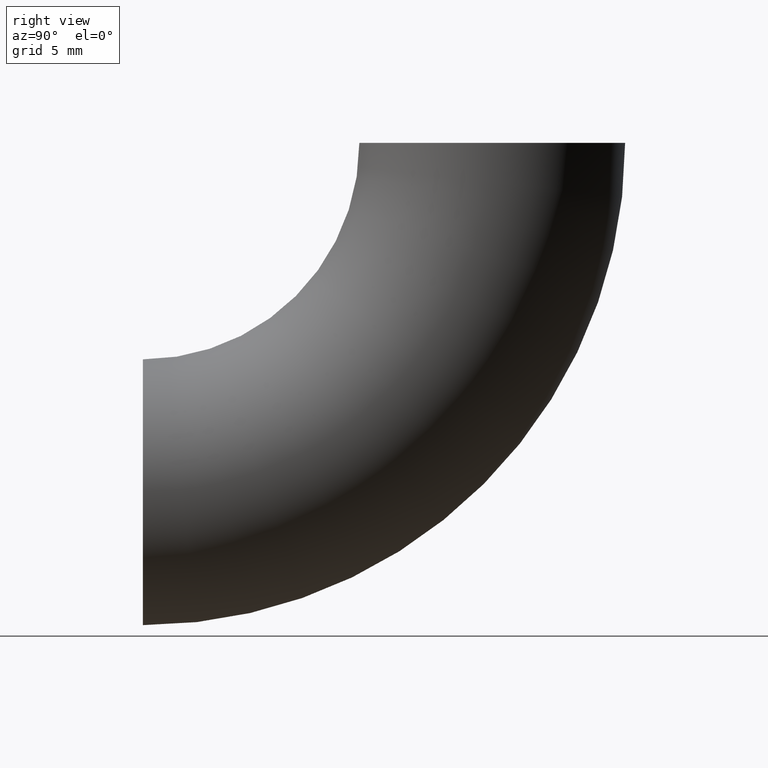
[diagram: clean part render]
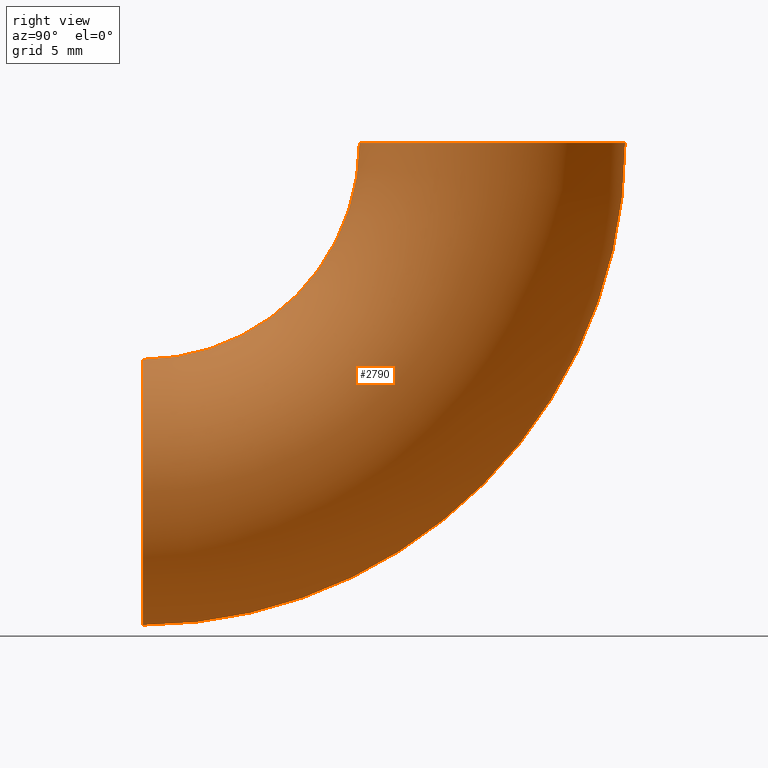
[diagram: same view with one face highlighted and labeled with its STEP entity id]
A machine part, right view. The second image highlights one B-rep face of the part: STEP entity #2790.
In plain terms, the highlighted toroidal blend (fillet) surface has major radius 28 mm and minor (blend) radius 10.65 mm.
Its self-contained STEP definition (entity closure, byte-faithful):
#276 = DIRECTION ( 'NONE',  ( 0.0000000000000000000, 6.123233995736766000E-017, 1.000000000000000000 ) ) ;
#342 = ORIENTED_EDGE ( 'NONE', *, *, #1679, .F. ) ;
#1297 = DIRECTION ( 'NONE',  ( -1.000000000000000000, -0.0000000000000000000, -0.0000000000000000000 ) ) ;
#1679 = EDGE_CURVE ( 'NONE', #2364, #2563, #10826, .T. ) ;
#1921 = AXIS2_PLACEMENT_3D ( 'NONE', #10490, #3514, #7048 ) ;
#1989 = AXIS2_PLACEMENT_3D ( 'NONE', #2972, #1297, #10005 ) ;
#2033 = DIRECTION ( 'NONE',  ( 0.0000000000000000000, -1.000000000000000000, 6.123233995736766000E-017 ) ) ;
#2364 = VERTEX_POINT ( 'NONE', #4855 ) ;
#2563 = VERTEX_POINT ( 'NONE', #10537 ) ;
#2790 = ADVANCED_FACE ( 'NONE', ( #8770 ), #10528, .T. ) ;
#2873 = CIRCLE ( 'NONE', #1921, 17.35000000000000100 ) ;
#2972 = CARTESIAN_POINT ( 'NONE',  ( 0.0000000000000000000, 0.0000000000000000000, 0.0000000000000000000 ) ) ;
#3012 = ORIENTED_EDGE ( 'NONE', *, *, #3064, .T. ) ;
#3064 = EDGE_CURVE ( 'NONE', #3118, #9448, #6708, .T. ) ;
#3118 = VERTEX_POINT ( 'NONE', #8054 ) ;
#3514 = DIRECTION ( 'NONE',  ( -1.000000000000000000, -0.0000000000000000000, -0.0000000000000000000 ) ) ;
#4182 = AXIS2_PLACEMENT_3D ( 'NONE', #7783, #4309, #7005 ) ;
#4309 = DIRECTION ( 'NONE',  ( 0.0000000000000000000, 1.000000000000000000, 0.0000000000000000000 ) ) ;
#4855 = CARTESIAN_POINT ( 'NONE',  ( 0.0000000000000000000, 17.35000000000000100, -1.062381098260328900E-015 ) ) ;
#5374 = ORIENTED_EDGE ( 'NONE', *, *, #6455, .T. ) ;
#5486 = DIRECTION ( 'NONE',  ( 0.0000000000000000000, 0.0000000000000000000, 1.000000000000000000 ) ) ;
#5517 = CARTESIAN_POINT ( 'NONE',  ( 0.0000000000000000000, 28.00000000000000000, -1.714505518806294600E-015 ) ) ;
#5701 = EDGE_CURVE ( 'NONE', #2563, #9448, #9313, .T. ) ;
#6134 = CARTESIAN_POINT ( 'NONE',  ( 0.0000000000000000000, 0.0000000000000000000, 0.0000000000000000000 ) ) ;
#6455 = EDGE_CURVE ( 'NONE', #2364, #3118, #2873, .T. ) ;
#6708 = CIRCLE ( 'NONE', #4182, 10.65000000000000000 ) ;
#7005 = DIRECTION ( 'NONE',  ( 0.0000000000000000000, 0.0000000000000000000, 1.000000000000000000 ) ) ;
#7048 = DIRECTION ( 'NONE',  ( 0.0000000000000000000, 0.0000000000000000000, 1.000000000000000000 ) ) ;
#7783 = CARTESIAN_POINT ( 'NONE',  ( 0.0000000000000000000, 0.0000000000000000000, -28.00000000000000000 ) ) ;
#8054 = CARTESIAN_POINT ( 'NONE',  ( 0.0000000000000000000, 0.0000000000000000000, -17.35000000000000100 ) ) ;
#8770 = FACE_OUTER_BOUND ( 'NONE', #9413, .T. ) ;
#8894 = DIRECTION ( 'NONE',  ( -1.000000000000000000, -0.0000000000000000000, -0.0000000000000000000 ) ) ;
#9313 = CIRCLE ( 'NONE', #10558, 38.65000000000000600 ) ;
#9413 = EDGE_LOOP ( 'NONE', ( #10432, #342, #5374, #3012 ) ) ;
#9429 = CARTESIAN_POINT ( 'NONE',  ( 0.0000000000000000000, 0.0000000000000000000, -38.65000000000000600 ) ) ;
#9448 = VERTEX_POINT ( 'NONE', #9429 ) ;
#10005 = DIRECTION ( 'NONE',  ( 0.0000000000000000000, 0.0000000000000000000, 1.000000000000000000 ) ) ;
#10432 = ORIENTED_EDGE ( 'NONE', *, *, #5701, .F. ) ;
#10490 = CARTESIAN_POINT ( 'NONE',  ( 1.304248841091931300E-015, 0.0000000000000000000, 0.0000000000000000000 ) ) ;
#10528 = TOROIDAL_SURFACE ( 'NONE', #1989, 28.00000000000000000, 10.65000000000000000 ) ;
#10537 = CARTESIAN_POINT ( 'NONE',  ( 0.0000000000000000000, 38.65000000000000600, -2.366629939352260000E-015 ) ) ;
#10558 = AXIS2_PLACEMENT_3D ( 'NONE', #6134, #8894, #5486 ) ;
#10826 = CIRCLE ( 'NONE', #10912, 10.65000000000000000 ) ;
#10912 = AXIS2_PLACEMENT_3D ( 'NONE', #5517, #276, #2033 ) ;